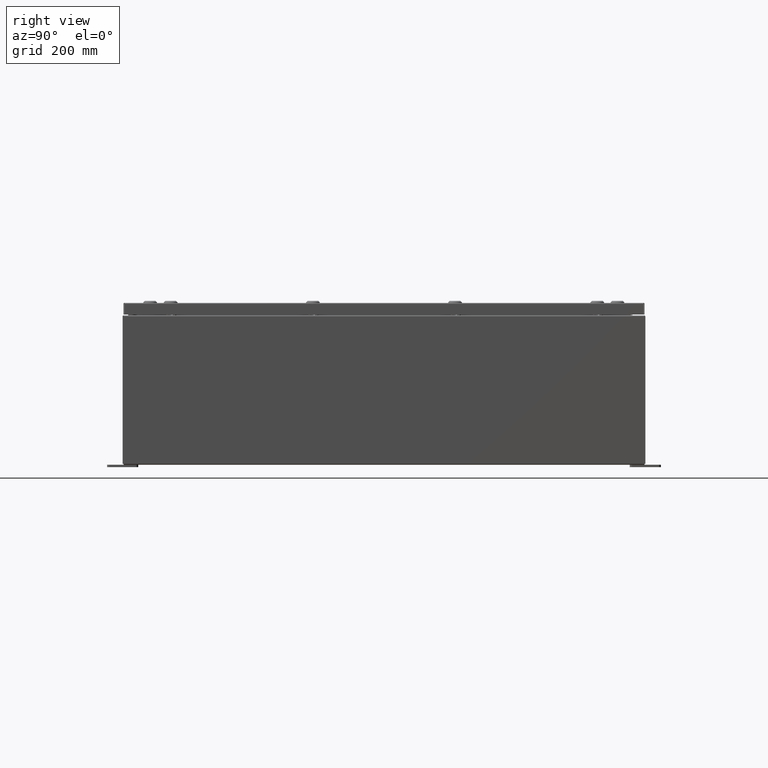
[diagram: clean part render]
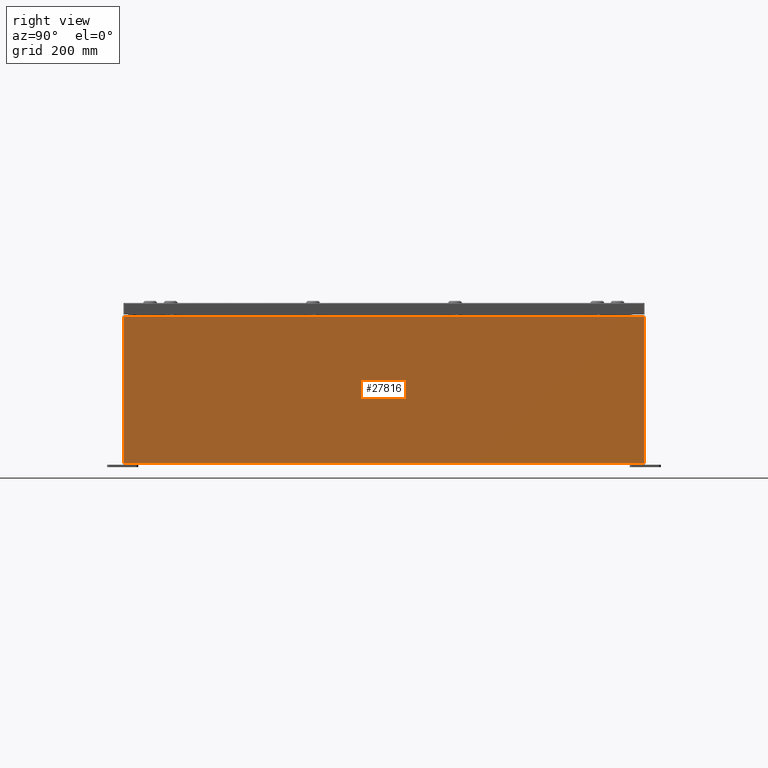
[diagram: same view with one face highlighted and labeled with its STEP entity id]
A machine part, right view. The second image highlights one B-rep face of the part: STEP entity #27816.
In plain terms, the highlighted planar face has unit normal (-1, 0, 0).
Its self-contained STEP definition (entity closure, byte-faithful):
#691 = CARTESIAN_POINT ( 'NONE',  ( 18.00000000000000400, 20.92529999999998600, 0.01299999999999984700 ) ) ;
#998 = ORIENTED_EDGE ( 'NONE', *, *, #9422, .T. ) ;
#3042 = CARTESIAN_POINT ( 'NONE',  ( 18.00000000000000400, -20.92529999999999600, -6.293710784286997500E-014 ) ) ;
#4279 = CARTESIAN_POINT ( 'NONE',  ( 18.00000000000000400, -20.92529999999999600, 0.01299999999999984700 ) ) ;
#6766 = ORIENTED_EDGE ( 'NONE', *, *, #39018, .T. ) ;
#7217 = VECTOR ( 'NONE', #19161, 39.37007874015748100 ) ;
#7925 = VERTEX_POINT ( 'NONE', #49147 ) ;
#8971 = CARTESIAN_POINT ( 'NONE',  ( 18.00000000000000400, 0.0000000000000000000, -6.293710784286997500E-014 ) ) ;
#9422 = EDGE_CURVE ( 'NONE', #34157, #7925, #33705, .T. ) ;
#15601 = LINE ( 'NONE', #56479, #28001 ) ;
#17637 = CARTESIAN_POINT ( 'NONE',  ( 18.00000000000000400, 20.92529999999998900, -6.293710784286997500E-014 ) ) ;
#19161 = DIRECTION ( 'NONE',  ( -0.0000000000000000000, -1.000000000000000000, -0.0000000000000000000 ) ) ;
#19602 = DIRECTION ( 'NONE',  ( -1.000000000000000000, 0.0000000000000000000, 3.482016343714355100E-015 ) ) ;
#19779 = LINE ( 'NONE', #3042, #48044 ) ;
#22935 = VECTOR ( 'NONE', #65719, 39.37007874015748100 ) ;
#24586 = LINE ( 'NONE', #17637, #22935 ) ;
#25925 = AXIS2_PLACEMENT_3D ( 'NONE', #8971, #19602, #56730 ) ;
#27486 = ORIENTED_EDGE ( 'NONE', *, *, #50900, .F. ) ;
#27588 = EDGE_CURVE ( 'NONE', #55722, #34157, #24586, .T. ) ;
#27816 = ADVANCED_FACE ( 'NONE', ( #58669 ), #46039, .F. ) ;
#28001 = VECTOR ( 'NONE', #35305, 39.37007874015748100 ) ;
#28433 = ORIENTED_EDGE ( 'NONE', *, *, #27588, .T. ) ;
#29649 = DIRECTION ( 'NONE',  ( -3.482016343714355500E-015, 0.0000000000000000000, -1.000000000000000000 ) ) ;
#33705 = LINE ( 'NONE', #61668, #7217 ) ;
#34157 = VERTEX_POINT ( 'NONE', #61841 ) ;
#35305 = DIRECTION ( 'NONE',  ( -0.0000000000000000000, -1.000000000000000000, -0.0000000000000000000 ) ) ;
#35857 = VERTEX_POINT ( 'NONE', #4279 ) ;
#39018 = EDGE_CURVE ( 'NONE', #7925, #35857, #19779, .T. ) ;
#46039 = PLANE ( 'NONE',  #25925 ) ;
#48044 = VECTOR ( 'NONE', #29649, 39.37007874015748100 ) ;
#49147 = CARTESIAN_POINT ( 'NONE',  ( 18.00000000000004300, -20.92529999999999600, 11.83760000000000000 ) ) ;
#50900 = EDGE_CURVE ( 'NONE', #55722, #35857, #15601, .T. ) ;
#55722 = VERTEX_POINT ( 'NONE', #691 ) ;
#56479 = CARTESIAN_POINT ( 'NONE',  ( 18.00000000000000400, -20.92529999999999600, 0.01299999999999984700 ) ) ;
#56730 = DIRECTION ( 'NONE',  ( 3.482016343714355100E-015, 0.0000000000000000000, 1.000000000000000000 ) ) ;
#58669 = FACE_OUTER_BOUND ( 'NONE', #59612, .T. ) ;
#59612 = EDGE_LOOP ( 'NONE', ( #998, #6766, #27486, #28433 ) ) ;
#61668 = CARTESIAN_POINT ( 'NONE',  ( 18.00000000000004300, 20.92529999999997900, 11.83760000000000000 ) ) ;
#61841 = CARTESIAN_POINT ( 'NONE',  ( 18.00000000000004300, 20.92529999999997500, 11.83760000000000000 ) ) ;
#65719 = DIRECTION ( 'NONE',  ( 3.482016343714355500E-015, 0.0000000000000000000, 1.000000000000000000 ) ) ;